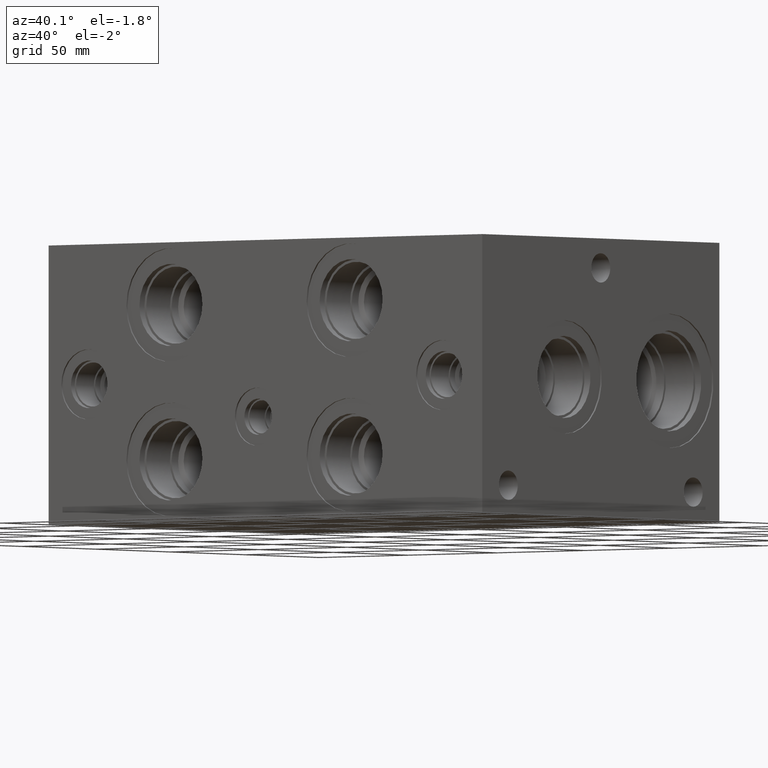
[diagram: clean part render]
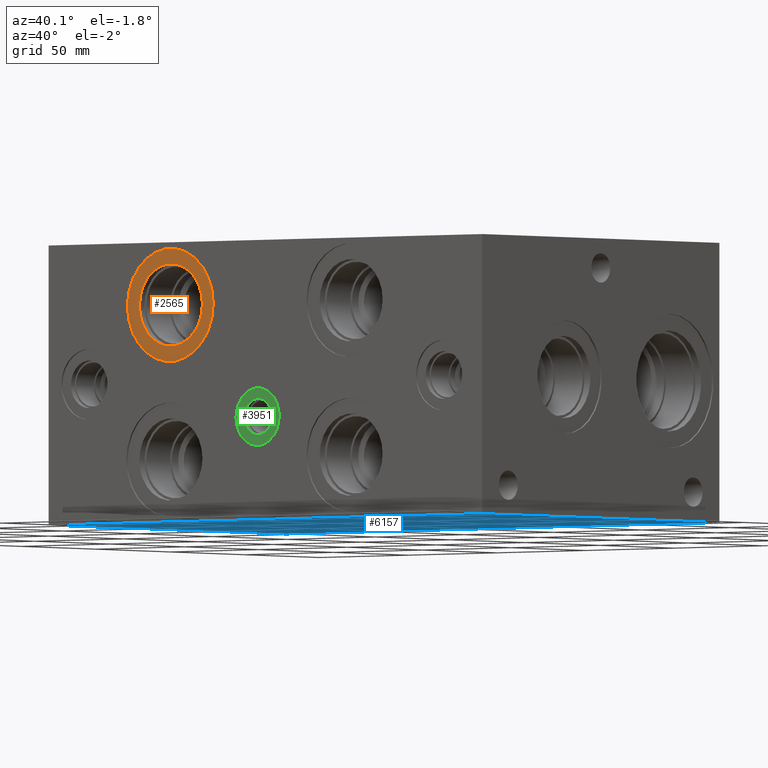
[diagram: same view with three faces highlighted in distinct colors, each labeled with its STEP entity id]
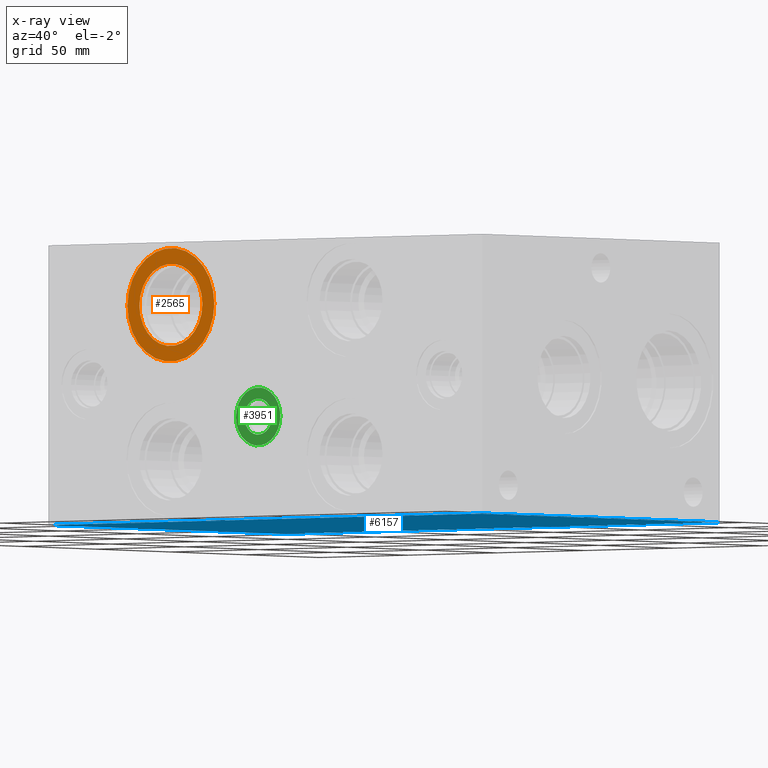
[diagram: x-ray of the same camera — body ghosted, the three highlighted faces saturated]
A machine part, auxiliary view with three faces highlighted in distinct colors.
The next image is the same camera in x-ray (body ghosted, the three faces saturated) — at least one of them is partly hidden behind the body in this view.
Their STEP definitions:

[orange] entity #2565 — the highlighted planar face has unit normal (0, 1, 0).
#2534=CARTESIAN_POINT('',(3.652000000000000,0.030000000000000,3.687000000000000));
#2535=VERTEX_POINT('',#2534);
#2536=CARTESIAN_POINT('',(2.688000000000000,0.030000000000000,3.687000000000000));
#2537=DIRECTION('',(0.0,1.0,0.0));
#2538=DIRECTION('',(-1.0,0.0,0.0));
#2539=AXIS2_PLACEMENT_3D('',#2536,#2537,#2538);
#2540=CIRCLE('',#2539,0.964000000000000);
#2541=EDGE_CURVE('',#2535,#2535,#2540,.T.);
#2546=CARTESIAN_POINT('',(2.688000000000000,0.030000000000000,3.687000000000000));
#2547=DIRECTION('',(0.0,1.0,0.0));
#2548=DIRECTION('',(0.0,0.0,1.0));
#2549=AXIS2_PLACEMENT_3D('',#2546,#2547,#2548);
#2550=PLANE('',#2549);
#2551=ORIENTED_EDGE('',*,*,#2541,.F.);
#2552=EDGE_LOOP('',(#2551));
#2553=FACE_OUTER_BOUND('',#2552,.T.);
#2554=CARTESIAN_POINT('',(3.387000000000000,0.030000000000000,3.687000000000000));
#2555=VERTEX_POINT('',#2554);
#2556=CARTESIAN_POINT('',(2.688000000000000,0.030000000000000,3.687000000000000));
#2557=DIRECTION('',(0.0,1.0,0.0));
#2558=DIRECTION('',(-1.0,0.0,0.0));
#2559=AXIS2_PLACEMENT_3D('',#2556,#2557,#2558);
#2560=CIRCLE('',#2559,0.699000000000000);
#2561=EDGE_CURVE('',#2555,#2555,#2560,.T.);
#2562=ORIENTED_EDGE('',*,*,#2561,.T.);
#2563=EDGE_LOOP('',(#2562));
#2564=FACE_BOUND('',#2563,.T.);
#2565=ADVANCED_FACE('',(#2553,#2564),#2550,.F.);

[blue] entity #6157 — the highlighted planar face has unit normal (0, 0, -1).
#4141=CARTESIAN_POINT('',(0.0,0.0,0.0));
#4142=VERTEX_POINT('',#4141);
#4149=CARTESIAN_POINT('',(9.624999999999998,0.0,0.0));
#4150=VERTEX_POINT('',#4149);
#4151=CARTESIAN_POINT('',(0.0,0.0,0.0));
#4152=DIRECTION('',(1.0,0.0,0.0));
#4153=VECTOR('',#4152,9.624999999999998);
#4154=LINE('',#4151,#4153);
#4155=EDGE_CURVE('',#4142,#4150,#4154,.T.);
#4988=CARTESIAN_POINT('',(0.0,6.249999999999999,0.0));
#4989=VERTEX_POINT('',#4988);
#4996=CARTESIAN_POINT('',(0.0,6.249999999999999,0.0));
#4997=DIRECTION('',(0.0,-1.0,0.0));
#4998=VECTOR('',#4997,6.249999999999999);
#4999=LINE('',#4996,#4998);
#5000=EDGE_CURVE('',#4989,#4142,#4999,.T.);
#5823=CARTESIAN_POINT('',(9.624999999999998,6.249999999999999,0.0));
#5824=VERTEX_POINT('',#5823);
#5825=CARTESIAN_POINT('',(9.624999999999998,0.0,0.0));
#5826=DIRECTION('',(0.0,1.0,0.0));
#5827=VECTOR('',#5826,6.249999999999999);
#5828=LINE('',#5825,#5827);
#5829=EDGE_CURVE('',#4150,#5824,#5828,.T.);
#6133=CARTESIAN_POINT('',(9.624999999999998,6.249999999999999,0.0));
#6134=DIRECTION('',(-1.0,0.0,0.0));
#6135=VECTOR('',#6134,9.624999999999998);
#6136=LINE('',#6133,#6135);
#6137=EDGE_CURVE('',#5824,#4989,#6136,.T.);
#6146=CARTESIAN_POINT('',(0.0,6.249999999999999,0.0));
#6147=DIRECTION('',(0.0,0.0,-1.0));
#6148=DIRECTION('',(-1.0,0.0,0.0));
#6149=AXIS2_PLACEMENT_3D('',#6146,#6147,#6148);
#6150=PLANE('',#6149);
#6151=ORIENTED_EDGE('',*,*,#4155,.F.);
#6152=ORIENTED_EDGE('',*,*,#5000,.F.);
#6153=ORIENTED_EDGE('',*,*,#6137,.F.);
#6154=ORIENTED_EDGE('',*,*,#5829,.F.);
#6155=EDGE_LOOP('',(#6151,#6152,#6153,#6154));
#6156=FACE_OUTER_BOUND('',#6155,.T.);
#6157=ADVANCED_FACE('',(#6156),#6150,.T.);

[green] entity #3951 — the highlighted planar face has unit normal (0, 1, 0).
#3920=CARTESIAN_POINT('',(5.117500000000000,0.030000000000000,1.750000000000000));
#3921=VERTEX_POINT('',#3920);
#3922=CARTESIAN_POINT('',(4.625000000000000,0.030000000000000,1.750000000000000));
#3923=DIRECTION('',(0.0,1.0,0.0));
#3924=DIRECTION('',(-1.0,0.0,0.0));
#3925=AXIS2_PLACEMENT_3D('',#3922,#3923,#3924);
#3926=CIRCLE('',#3925,0.492500000000000);
#3927=EDGE_CURVE('',#3921,#3921,#3926,.T.);
#3932=CARTESIAN_POINT('',(4.625000000000000,0.030000000000000,1.750000000000000));
#3933=DIRECTION('',(0.0,1.0,0.0));
#3934=DIRECTION('',(0.0,0.0,1.0));
#3935=AXIS2_PLACEMENT_3D('',#3932,#3933,#3934);
#3936=PLANE('',#3935);
#3937=ORIENTED_EDGE('',*,*,#3927,.F.);
#3938=EDGE_LOOP('',(#3937));
#3939=FACE_OUTER_BOUND('',#3938,.T.);
#3940=CARTESIAN_POINT('',(4.932000000000000,0.030000000000000,1.750000000000000));
#3941=VERTEX_POINT('',#3940);
#3942=CARTESIAN_POINT('',(4.625000000000000,0.030000000000000,1.750000000000000));
#3943=DIRECTION('',(0.0,1.0,0.0));
#3944=DIRECTION('',(-1.0,0.0,0.0));
#3945=AXIS2_PLACEMENT_3D('',#3942,#3943,#3944);
#3946=CIRCLE('',#3945,0.307000000000000);
#3947=EDGE_CURVE('',#3941,#3941,#3946,.T.);
#3948=ORIENTED_EDGE('',*,*,#3947,.T.);
#3949=EDGE_LOOP('',(#3948));
#3950=FACE_BOUND('',#3949,.T.);
#3951=ADVANCED_FACE('',(#3939,#3950),#3936,.F.);